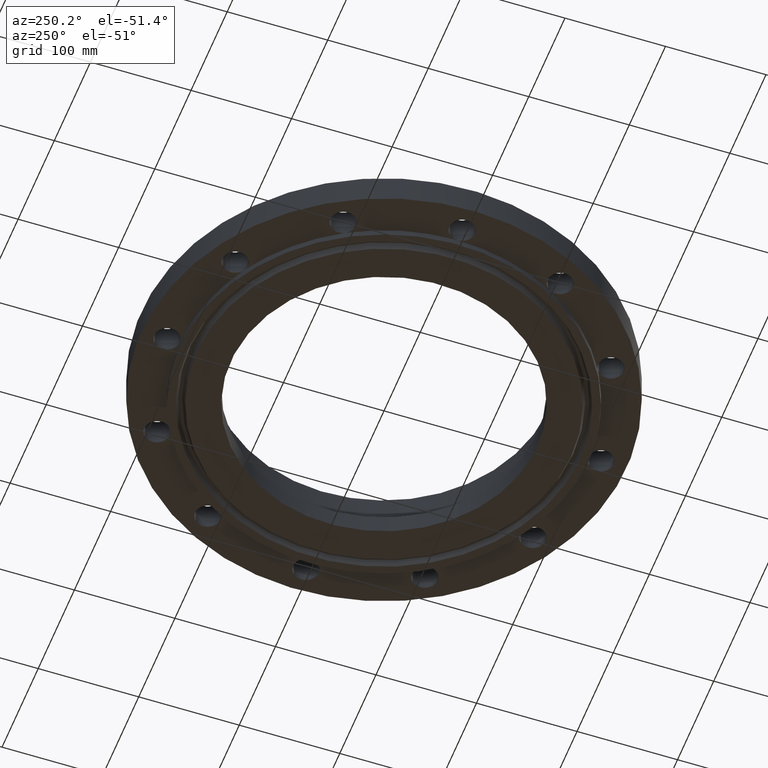
[diagram: clean part render]
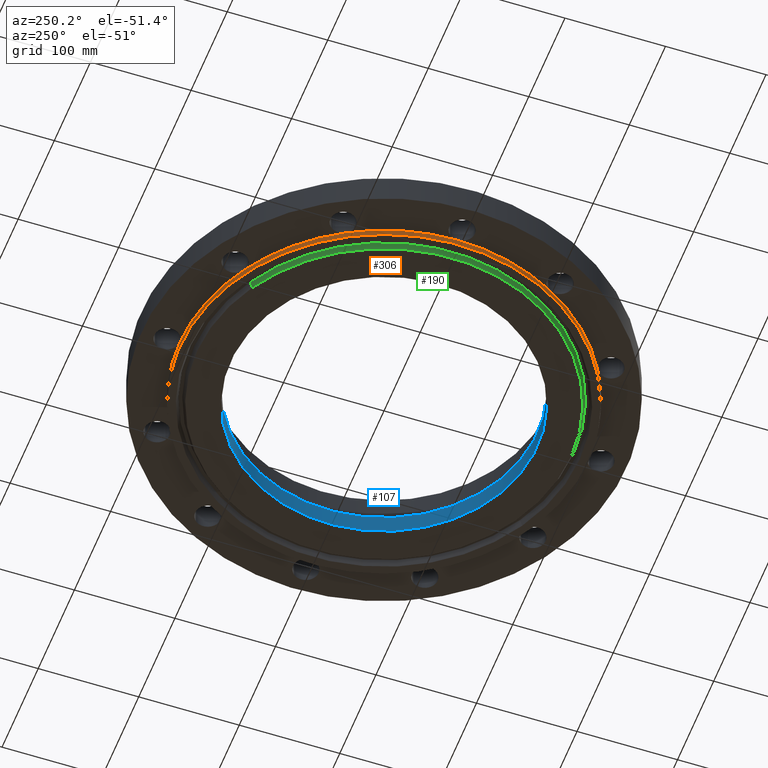
[diagram: same view with three faces highlighted in distinct colors, each labeled with its STEP entity id]
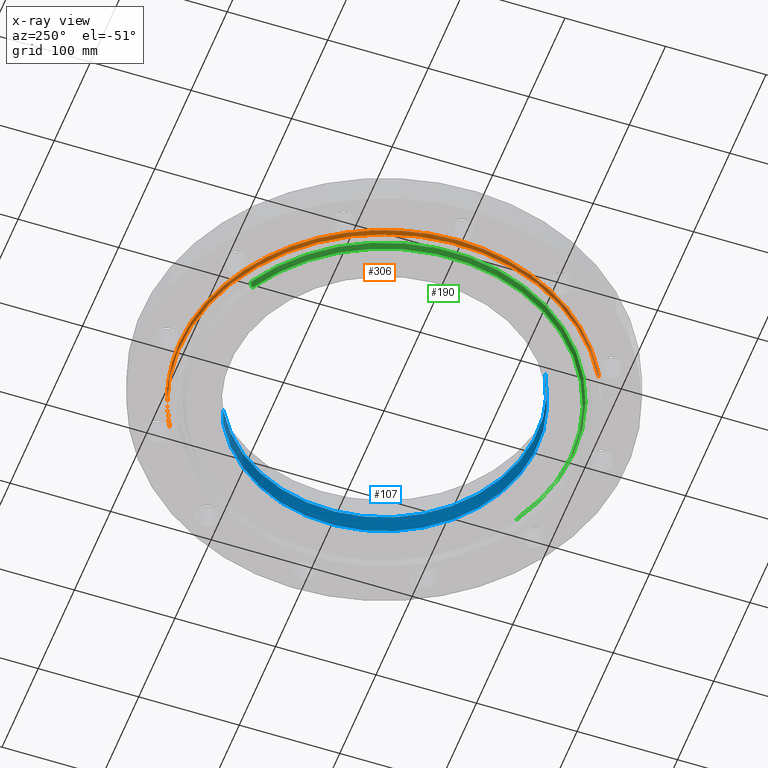
[diagram: x-ray of the same camera — body ghosted, the three highlighted faces saturated]
A machine part, auxiliary view with three faces highlighted in distinct colors.
The next image is the same camera in x-ray (body ghosted, the three faces saturated) — at least one of them is partly hidden behind the body in this view.
Their STEP definitions:

[orange] entity #306 — the highlighted cylindrical surface (partial cylindrical patch) has radius 203.2 mm, axis along (0, 0, -1).
#193=AXIS2_PLACEMENT_3D('Circle Axis2P3D',#191,#192,$) ;
#231=AXIS2_PLACEMENT_3D('Cylinder Axis2P3D',#228,#229,#230) ;
#242=AXIS2_PLACEMENT_3D('Circle Axis2P3D',#240,#241,$) ;
#249=AXIS2_PLACEMENT_3D('Circle Axis2P3D',#247,#248,$) ;
#256=AXIS2_PLACEMENT_3D('Circle Axis2P3D',#254,#255,$) ;
#263=AXIS2_PLACEMENT_3D('Circle Axis2P3D',#261,#262,$) ;
#270=AXIS2_PLACEMENT_3D('Circle Axis2P3D',#268,#269,$) ;
#277=AXIS2_PLACEMENT_3D('Circle Axis2P3D',#275,#276,$) ;
#284=AXIS2_PLACEMENT_3D('Circle Axis2P3D',#282,#283,$) ;
#191=CARTESIAN_POINT('Axis2P3D Location',(0.,0.,-0.250000000001)) ;
#195=CARTESIAN_POINT('Vertex',(-3.83540430885,-7.02066049515,-0.250000000001)) ;
#197=CARTESIAN_POINT('Vertex',(3.83540430885,7.02066049515,-0.250000000001)) ;
#228=CARTESIAN_POINT('Axis2P3D Location',(0.,0.,0.935000000004)) ;
#233=CARTESIAN_POINT('Line Origine',(-3.83540430885,-7.02066049515,-0.125)) ;
#237=CARTESIAN_POINT('Vertex',(-3.83540430885,-7.02066049515,8.39223703654E-016)) ;
#240=CARTESIAN_POINT('Axis2P3D Location',(0.,0.,9.79094320929E-016)) ;
#244=CARTESIAN_POINT('Vertex',(-4.00000000002,-6.9282032303,0.)) ;
#247=CARTESIAN_POINT('Axis2P3D Location',(0.,0.,9.79094320929E-016)) ;
#251=CARTESIAN_POINT('Vertex',(-6.9282032303,-4.00000000002,0.)) ;
#254=CARTESIAN_POINT('Axis2P3D Location',(0.,0.,9.79094320929E-016)) ;
#258=CARTESIAN_POINT('Vertex',(-8.00000000003,1.1189649382E-015,0.)) ;
#261=CARTESIAN_POINT('Axis2P3D Location',(0.,0.,9.79094320929E-016)) ;
#265=CARTESIAN_POINT('Vertex',(-6.9282032303,4.00000000002,0.)) ;
#268=CARTESIAN_POINT('Axis2P3D Location',(0.,0.,9.79094320929E-016)) ;
#272=CARTESIAN_POINT('Vertex',(-4.00000000002,6.9282032303,0.)) ;
#275=CARTESIAN_POINT('Axis2P3D Location',(0.,0.,9.79094320929E-016)) ;
#279=CARTESIAN_POINT('Vertex',(-3.42901103763E-015,8.00000000003,9.79094320929E-016)) ;
#282=CARTESIAN_POINT('Axis2P3D Location',(0.,0.,9.79094320929E-016)) ;
#286=CARTESIAN_POINT('Vertex',(3.83540430885,7.02066049515,8.39223703654E-016)) ;
#289=CARTESIAN_POINT('Line Origine',(3.83540430885,7.02066049515,-0.125)) ;
#192=DIRECTION('Axis2P3D Direction',(0.,0.,-0.0393700787402)) ;
#229=DIRECTION('Axis2P3D Direction',(0.,0.,-0.0393700787402)) ;
#230=DIRECTION('Axis2P3D XDirection',(0.0188750212049,0.0345504945626,0.)) ;
#234=DIRECTION('Vector Direction',(0.,0.,-0.0393700787402)) ;
#241=DIRECTION('Axis2P3D Direction',(0.,0.,-0.0393700787402)) ;
#248=DIRECTION('Axis2P3D Direction',(0.,0.,-0.0393700787402)) ;
#255=DIRECTION('Axis2P3D Direction',(0.,0.,-0.0393700787402)) ;
#262=DIRECTION('Axis2P3D Direction',(0.,0.,-0.0393700787402)) ;
#269=DIRECTION('Axis2P3D Direction',(0.,0.,-0.0393700787402)) ;
#276=DIRECTION('Axis2P3D Direction',(0.,0.,-0.0393700787402)) ;
#283=DIRECTION('Axis2P3D Direction',(0.,0.,-0.0393700787402)) ;
#290=DIRECTION('Vector Direction',(0.,0.,-0.0393700787402)) ;
#235=VECTOR('Line Direction',#234,0.0393700787402) ;
#291=VECTOR('Line Direction',#290,0.0393700787402) ;
#295=ORIENTED_EDGE('',*,*,#199,.F.) ;
#296=ORIENTED_EDGE('',*,*,#239,.T.) ;
#297=ORIENTED_EDGE('',*,*,#246,.T.) ;
#298=ORIENTED_EDGE('',*,*,#253,.T.) ;
#299=ORIENTED_EDGE('',*,*,#260,.T.) ;
#300=ORIENTED_EDGE('',*,*,#267,.T.) ;
#301=ORIENTED_EDGE('',*,*,#274,.T.) ;
#302=ORIENTED_EDGE('',*,*,#281,.T.) ;
#303=ORIENTED_EDGE('',*,*,#288,.T.) ;
#304=ORIENTED_EDGE('',*,*,#293,.F.) ;
#306=ADVANCED_FACE('PartBody',(#305),#232,.T.) ;
#194=CIRCLE('generated circle',#193,8.00000000003) ;
#243=CIRCLE('generated circle',#242,8.00000000003) ;
#250=CIRCLE('generated circle',#249,8.00000000003) ;
#257=CIRCLE('generated circle',#256,8.00000000003) ;
#264=CIRCLE('generated circle',#263,8.00000000003) ;
#271=CIRCLE('generated circle',#270,8.00000000003) ;
#278=CIRCLE('generated circle',#277,8.00000000003) ;
#285=CIRCLE('generated circle',#284,8.00000000003) ;
#232=CYLINDRICAL_SURFACE('generated cylinder',#231,8.00000000003) ;
#199=EDGE_CURVE('',#196,#198,#194,.T.) ;
#239=EDGE_CURVE('',#196,#238,#236,.F.) ;
#246=EDGE_CURVE('',#238,#245,#243,.T.) ;
#253=EDGE_CURVE('',#245,#252,#250,.T.) ;
#260=EDGE_CURVE('',#252,#259,#257,.T.) ;
#267=EDGE_CURVE('',#259,#266,#264,.T.) ;
#274=EDGE_CURVE('',#266,#273,#271,.T.) ;
#281=EDGE_CURVE('',#273,#280,#278,.T.) ;
#288=EDGE_CURVE('',#280,#287,#285,.T.) ;
#293=EDGE_CURVE('',#198,#287,#292,.F.) ;
#294=EDGE_LOOP('',(#295,#296,#297,#298,#299,#300,#301,#302,#303,#304)) ;
#305=FACE_OUTER_BOUND('',#294,.T.) ;
#236=LINE('Line',#233,#235) ;
#292=LINE('Line',#289,#291) ;
#196=VERTEX_POINT('',#195) ;
#198=VERTEX_POINT('',#197) ;
#238=VERTEX_POINT('',#237) ;
#245=VERTEX_POINT('',#244) ;
#252=VERTEX_POINT('',#251) ;
#259=VERTEX_POINT('',#258) ;
#266=VERTEX_POINT('',#265) ;
#273=VERTEX_POINT('',#272) ;
#280=VERTEX_POINT('',#279) ;
#287=VERTEX_POINT('',#286) ;

[blue] entity #107 — the highlighted cylindrical surface (partial cylindrical patch) has radius 152.4 mm, axis along (0, 0, -1).
#69=AXIS2_PLACEMENT_3D('Circle Axis2P3D',#67,#68,$) ;
#80=AXIS2_PLACEMENT_3D('Cylinder Axis2P3D',#77,#78,#79) ;
#91=AXIS2_PLACEMENT_3D('Circle Axis2P3D',#89,#90,$) ;
#62=CARTESIAN_POINT('Vertex',(-2.87655323164,-5.26549537136,0.560000000002)) ;
#64=CARTESIAN_POINT('Vertex',(2.87655323164,5.26549537136,0.560000000002)) ;
#67=CARTESIAN_POINT('Axis2P3D Location',(2.34283283937E-015,6.99353086378E-017,0.560000000002)) ;
#77=CARTESIAN_POINT('Axis2P3D Location',(0.,0.,0.935000000004)) ;
#82=CARTESIAN_POINT('Line Origine',(2.87655323164,5.26549537136,0.155000000001)) ;
#86=CARTESIAN_POINT('Vertex',(2.87655323164,5.26549537136,-0.250000000001)) ;
#89=CARTESIAN_POINT('Axis2P3D Location',(0.,0.,-0.250000000001)) ;
#93=CARTESIAN_POINT('Vertex',(-2.87655323164,-5.26549537136,-0.250000000001)) ;
#96=CARTESIAN_POINT('Line Origine',(-2.87655323164,-5.26549537136,0.155000000001)) ;
#68=DIRECTION('Axis2P3D Direction',(0.,0.,-0.0393700787402)) ;
#78=DIRECTION('Axis2P3D Direction',(0.,0.,-0.0393700787402)) ;
#79=DIRECTION('Axis2P3D XDirection',(-0.0188750212049,-0.0345504945626,0.)) ;
#83=DIRECTION('Vector Direction',(0.,0.,-0.0393700787402)) ;
#90=DIRECTION('Axis2P3D Direction',(0.,0.,-0.0393700787402)) ;
#97=DIRECTION('Vector Direction',(0.,0.,-0.0393700787402)) ;
#84=VECTOR('Line Direction',#83,0.0393700787402) ;
#98=VECTOR('Line Direction',#97,0.0393700787402) ;
#102=ORIENTED_EDGE('',*,*,#88,.T.) ;
#103=ORIENTED_EDGE('',*,*,#95,.T.) ;
#104=ORIENTED_EDGE('',*,*,#100,.F.) ;
#105=ORIENTED_EDGE('',*,*,#71,.F.) ;
#107=ADVANCED_FACE('PartBody',(#106),#81,.F.) ;
#70=CIRCLE('generated circle',#69,6.00000000002) ;
#92=CIRCLE('generated circle',#91,6.00000000002) ;
#81=CYLINDRICAL_SURFACE('generated cylinder',#80,6.00000000002) ;
#71=EDGE_CURVE('',#65,#63,#70,.T.) ;
#88=EDGE_CURVE('',#65,#87,#85,.T.) ;
#95=EDGE_CURVE('',#87,#94,#92,.T.) ;
#100=EDGE_CURVE('',#63,#94,#99,.T.) ;
#101=EDGE_LOOP('',(#102,#103,#104,#105)) ;
#106=FACE_OUTER_BOUND('',#101,.T.) ;
#85=LINE('Line',#82,#84) ;
#99=LINE('Line',#96,#98) ;
#63=VERTEX_POINT('',#62) ;
#65=VERTEX_POINT('',#64) ;
#87=VERTEX_POINT('',#86) ;
#94=VERTEX_POINT('',#93) ;

[green] entity #190 — the highlighted conical surface has half-angle 23 deg.
#136=AXIS2_PLACEMENT_3D('Circle Axis2P3D',#134,#135,$) ;
#151=AXIS2_PLACEMENT_3D('Cone Axis2P3D',#148,#149,#150) ;
#181=AXIS2_PLACEMENT_3D('Circle Axis2P3D',#179,#180,$) ;
#129=CARTESIAN_POINT('Vertex',(-3.5132902751,6.43103471138,-0.250000000001)) ;
#131=CARTESIAN_POINT('Vertex',(3.5132902751,-6.43103471138,-0.250000000001)) ;
#134=CARTESIAN_POINT('Axis2P3D Location',(0.,1.1189649382E-015,-0.250000000001)) ;
#148=CARTESIAN_POINT('Axis2P3D Location',(0.,0.,-0.310000000001)) ;
#153=CARTESIAN_POINT('Line Origine',(-3.53679096019,6.47405242688,-0.134519826118)) ;
#157=CARTESIAN_POINT('Vertex',(-3.56029164527,6.51707014239,-0.0190396522348)) ;
#164=CARTESIAN_POINT('Vertex',(3.56029164527,-6.51707014239,-0.0190396522348)) ;
#167=CARTESIAN_POINT('Line Origine',(3.53679096019,-6.47405242688,-0.134519826118)) ;
#179=CARTESIAN_POINT('Axis2P3D Location',(0.,0.,-0.0190396522348)) ;
#135=DIRECTION('Axis2P3D Direction',(0.,0.,-0.0393700787402)) ;
#149=DIRECTION('Axis2P3D Direction',(0.,0.,0.0393700787402)) ;
#150=DIRECTION('Axis2P3D XDirection',(-0.0188750212049,0.0345504945626,0.)) ;
#154=DIRECTION('Vector Direction',(-0.00737505833565,0.0134999537303,0.0362403485611)) ;
#168=DIRECTION('Vector Direction',(0.00737505833565,-0.0134999537303,0.0362403485611)) ;
#180=DIRECTION('Axis2P3D Direction',(0.,0.,0.0393700787402)) ;
#155=VECTOR('Line Direction',#154,0.0393700787402) ;
#169=VECTOR('Line Direction',#168,0.0393700787402) ;
#185=ORIENTED_EDGE('',*,*,#171,.F.) ;
#186=ORIENTED_EDGE('',*,*,#183,.F.) ;
#187=ORIENTED_EDGE('',*,*,#159,.T.) ;
#188=ORIENTED_EDGE('',*,*,#138,.F.) ;
#190=ADVANCED_FACE('PartBody',(#189),#152,.T.) ;
#137=CIRCLE('generated circle',#136,7.32812500003) ;
#182=CIRCLE('generated circle',#181,7.4261618512) ;
#152=CONICAL_SURFACE('Cone',#151,7.30265651106,0.401425727959) ;
#138=EDGE_CURVE('',#132,#130,#137,.T.) ;
#159=EDGE_CURVE('',#158,#130,#156,.F.) ;
#171=EDGE_CURVE('',#165,#132,#170,.F.) ;
#183=EDGE_CURVE('',#158,#165,#182,.T.) ;
#184=EDGE_LOOP('',(#185,#186,#187,#188)) ;
#189=FACE_OUTER_BOUND('',#184,.T.) ;
#156=LINE('Line',#153,#155) ;
#170=LINE('Line',#167,#169) ;
#130=VERTEX_POINT('',#129) ;
#132=VERTEX_POINT('',#131) ;
#158=VERTEX_POINT('',#157) ;
#165=VERTEX_POINT('',#164) ;